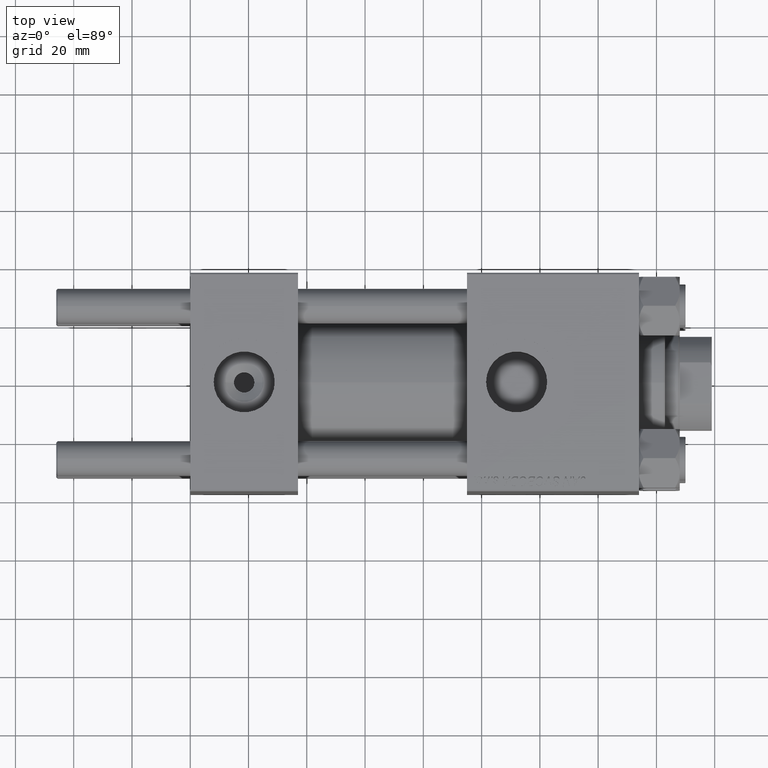
[diagram: clean part render]
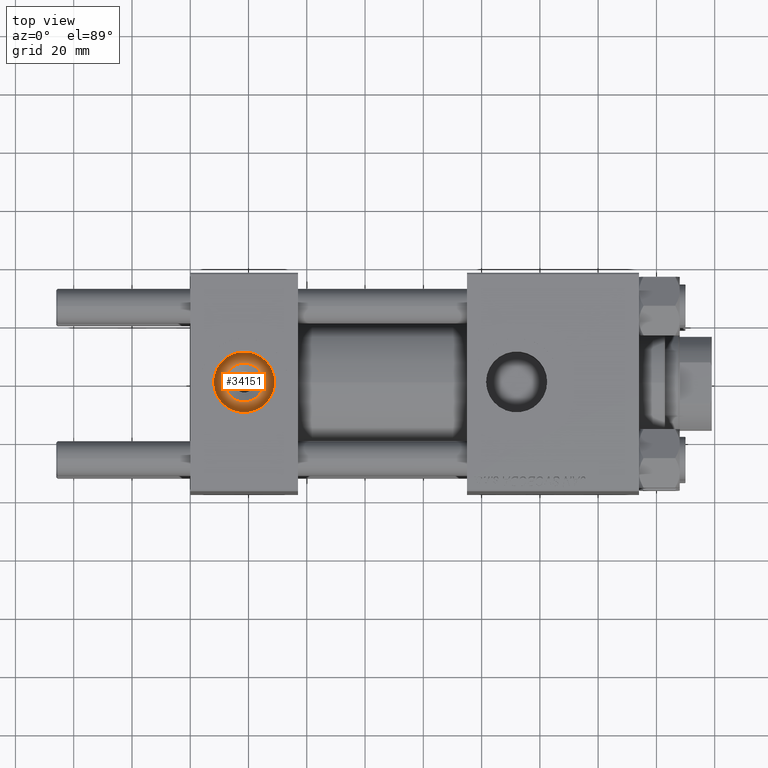
[diagram: same view with one face highlighted and labeled with its STEP entity id]
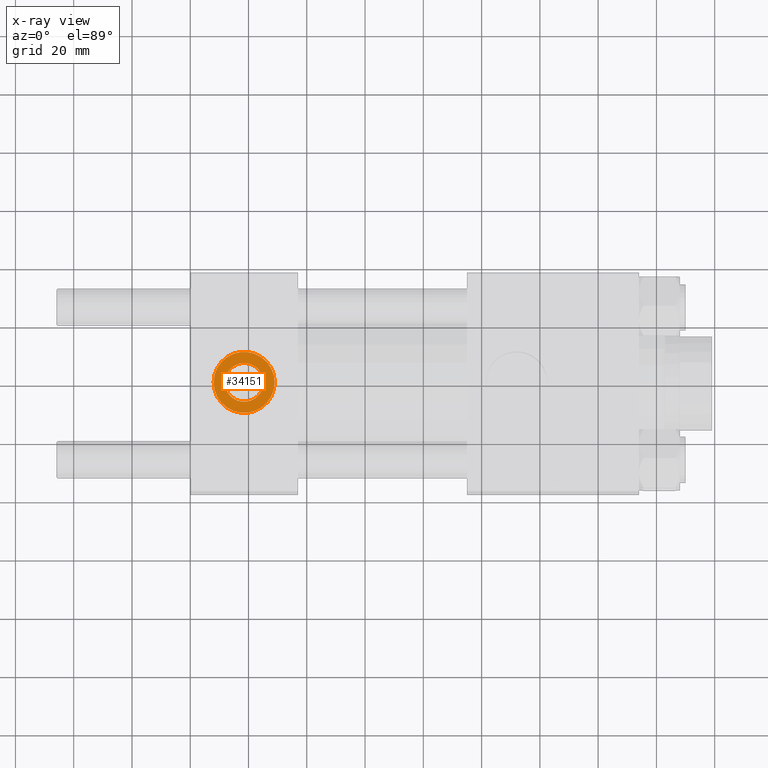
[diagram: x-ray of the same camera — body ghosted, the highlighted face saturated]
A machine part, top view. The second image highlights one B-rep face of the part: STEP entity #34151.
The next image is the same camera in x-ray: the body ghosted, the highlighted face saturated — about 0% of this face is hidden behind the body in this view.
In plain terms, the highlighted planar face has unit normal (0, 0, 1).
Its self-contained STEP definition (entity closure, byte-faithful):
#93 = CIRCLE ( 'NONE', #912, 10.48000000000000043 ) ;
#912 = AXIS2_PLACEMENT_3D ( 'NONE', #7027, #11211, #51767 ) ;
#7027 = CARTESIAN_POINT ( 'NONE',  ( 18.50000000000000000, -5.204170427930421283E-15, 26.69999999999999929 ) ) ;
#8255 = CARTESIAN_POINT ( 'NONE',  ( 18.50000000000000000, -5.204170427930421283E-15, 26.69999999999999929 ) ) ;
#8521 = AXIS2_PLACEMENT_3D ( 'NONE', #43383, #20067, #44142 ) ;
#8825 = EDGE_CURVE ( 'NONE', #25017, #46730, #42182, .T. ) ;
#10640 = CARTESIAN_POINT ( 'NONE',  ( 11.86000000000001897, -4.391004953296581540E-15, 26.69999999999999929 ) ) ;
#10981 = VERTEX_POINT ( 'NONE', #43509 ) ;
#11211 = DIRECTION ( 'NONE',  ( 0.000000000000000000, 0.000000000000000000, 1.000000000000000000 ) ) ;
#14024 = ORIENTED_EDGE ( 'NONE', *, *, #44990, .T. ) ;
#18352 = CIRCLE ( 'NONE', #24159, 6.639999999999979252 ) ;
#20067 = DIRECTION ( 'NONE',  ( 0.000000000000000000, 0.000000000000000000, 1.000000000000000000 ) ) ;
#23176 = EDGE_LOOP ( 'NONE', ( #35925, #46251 ) ) ;
#23428 = DIRECTION ( 'NONE',  ( -0.000000000000000000, -0.000000000000000000, -1.000000000000000000 ) ) ;
#23987 = PLANE ( 'NONE',  #8521 ) ;
#24159 = AXIS2_PLACEMENT_3D ( 'NONE', #44090, #23428, #24191 ) ;
#24191 = DIRECTION ( 'NONE',  ( 1.000000000000000000, 0.000000000000000000, 0.000000000000000000 ) ) ;
#25017 = VERTEX_POINT ( 'NONE', #27399 ) ;
#27399 = CARTESIAN_POINT ( 'NONE',  ( 25.13999999999997925, -5.204170427930421283E-15, 26.69999999999999929 ) ) ;
#29039 = EDGE_CURVE ( 'NONE', #30510, #10981, #31066, .T. ) ;
#29071 = DIRECTION ( 'NONE',  ( 0.000000000000000000, 0.000000000000000000, 1.000000000000000000 ) ) ;
#30510 = VERTEX_POINT ( 'NONE', #51366 ) ;
#31066 = CIRCLE ( 'NONE', #34406, 10.48000000000000043 ) ;
#32091 = DIRECTION ( 'NONE',  ( -0.000000000000000000, -0.000000000000000000, -1.000000000000000000 ) ) ;
#32600 = DIRECTION ( 'NONE',  ( 1.000000000000000000, 0.000000000000000000, 0.000000000000000000 ) ) ;
#33538 = DIRECTION ( 'NONE',  ( 1.000000000000000000, 0.000000000000000000, 0.000000000000000000 ) ) ;
#34151 = ADVANCED_FACE ( 'NONE', ( #51744, #43123 ), #23987, .T. ) ;
#34406 = AXIS2_PLACEMENT_3D ( 'NONE', #41645, #29071, #33538 ) ;
#35925 = ORIENTED_EDGE ( 'NONE', *, *, #49025, .T. ) ;
#36342 = AXIS2_PLACEMENT_3D ( 'NONE', #8255, #32091, #32600 ) ;
#36728 = EDGE_LOOP ( 'NONE', ( #49825, #14024 ) ) ;
#41645 = CARTESIAN_POINT ( 'NONE',  ( 18.50000000000000000, -5.204170427930421283E-15, 26.69999999999999929 ) ) ;
#42182 = CIRCLE ( 'NONE', #36342, 6.639999999999979252 ) ;
#43123 = FACE_OUTER_BOUND ( 'NONE', #23176, .T. ) ;
#43383 = CARTESIAN_POINT ( 'NONE',  ( 18.50000000000000000, -5.204170427930421283E-15, 26.69999999999999929 ) ) ;
#43509 = CARTESIAN_POINT ( 'NONE',  ( 28.98000000000000043, -5.204170427930421283E-15, 26.69999999999999929 ) ) ;
#44090 = CARTESIAN_POINT ( 'NONE',  ( 18.50000000000000000, -5.204170427930421283E-15, 26.69999999999999929 ) ) ;
#44142 = DIRECTION ( 'NONE',  ( 1.000000000000000000, 0.000000000000000000, -0.000000000000000000 ) ) ;
#44990 = EDGE_CURVE ( 'NONE', #46730, #25017, #18352, .T. ) ;
#46251 = ORIENTED_EDGE ( 'NONE', *, *, #29039, .T. ) ;
#46730 = VERTEX_POINT ( 'NONE', #10640 ) ;
#49025 = EDGE_CURVE ( 'NONE', #10981, #30510, #93, .T. ) ;
#49825 = ORIENTED_EDGE ( 'NONE', *, *, #8825, .T. ) ;
#51366 = CARTESIAN_POINT ( 'NONE',  ( 8.019999999999999574, -3.920740582423995006E-15, 26.69999999999999929 ) ) ;
#51744 = FACE_BOUND ( 'NONE', #36728, .T. ) ;
#51767 = DIRECTION ( 'NONE',  ( 1.000000000000000000, 0.000000000000000000, 0.000000000000000000 ) ) ;